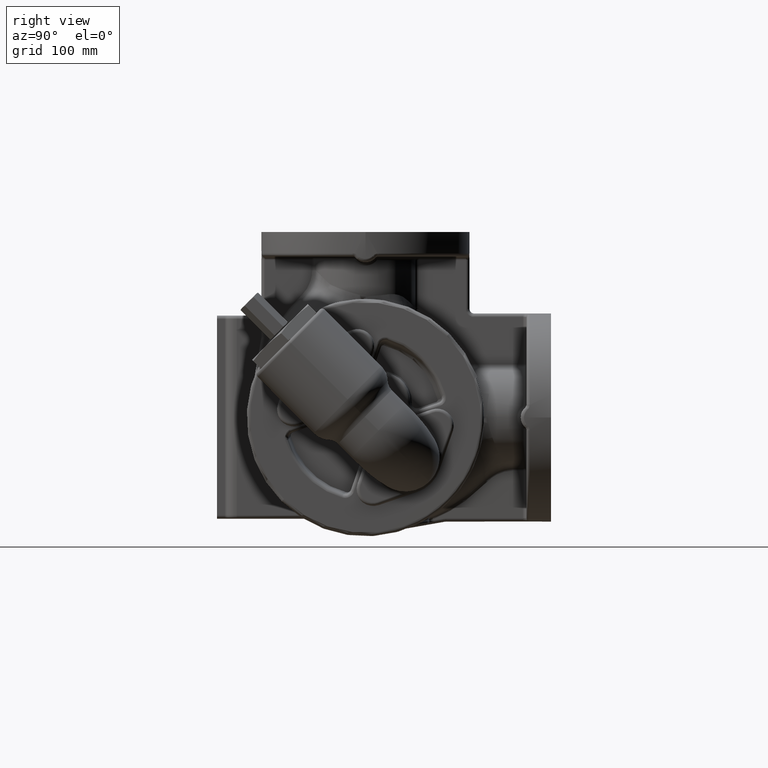
[diagram: clean part render]
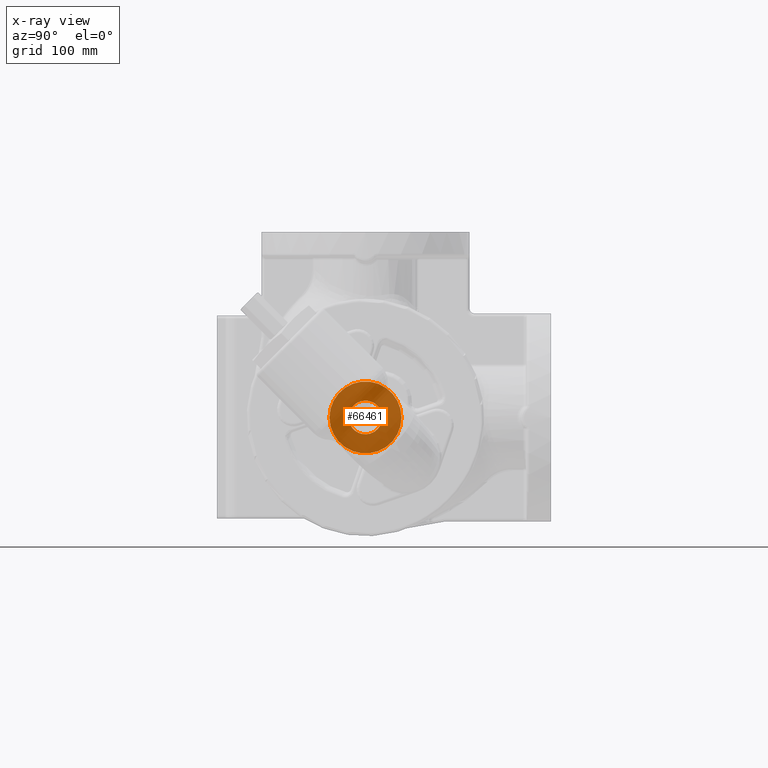
[diagram: x-ray — body ghosted, one internal face saturated and labeled with its STEP entity id]
A machine part, right view, then the same camera in x-ray: the body is ghosted and one INTERNAL B-rep face — a face not visible from any outside direction — is saturated and labeled: STEP entity #66461.
In plain terms, the highlighted planar face has unit normal (-1, 0, 0).
Its self-contained STEP definition (entity closure, byte-faithful):
#66281=CARTESIAN_POINT('',(6.5E0,0.E0,0.E0));
#66282=DIRECTION('',(-1.E0,0.E0,0.E0));
#66283=DIRECTION('',(0.E0,-1.E0,0.E0));
#66284=AXIS2_PLACEMENT_3D('',#66281,#66282,#66283);
#66286=CARTESIAN_POINT('',(6.5E0,0.E0,0.E0));
#66287=DIRECTION('',(-1.E0,0.E0,0.E0));
#66288=DIRECTION('',(0.E0,1.E0,0.E0));
#66289=AXIS2_PLACEMENT_3D('',#66286,#66287,#66288);
#66319=CARTESIAN_POINT('',(6.5E0,0.E0,0.E0));
#66320=DIRECTION('',(1.E0,0.E0,0.E0));
#66321=DIRECTION('',(0.E0,9.643650760993E-1,2.645751311065E-1));
#66322=AXIS2_PLACEMENT_3D('',#66319,#66320,#66321);
#66357=DIRECTION('',(0.E0,1.E0,0.E0));
#66358=VECTOR('',#66357,3.465476141489E0);
#66359=CARTESIAN_POINT('',(6.5E0,1.1E1,-3.968626966597E0));
#66360=LINE('',#66359,#66358);
#66361=DIRECTION('',(0.E0,1.E0,0.E0));
#66362=VECTOR('',#66361,3.465476141489E0);
#66363=CARTESIAN_POINT('',(6.5E0,1.1E1,3.968626966597E0));
#66364=LINE('',#66363,#66362);
#66365=CARTESIAN_POINT('',(6.5E0,0.E0,0.E0));
#66366=DIRECTION('',(1.E0,0.E0,0.E0));
#66367=DIRECTION('',(0.E0,0.E0,1.E0));
#66368=AXIS2_PLACEMENT_3D('',#66365,#66366,#66367);
#66407=DIRECTION('',(0.E0,0.E0,-1.E0));
#66408=VECTOR('',#66407,7.937253933194E0);
#66409=CARTESIAN_POINT('',(6.5E0,1.1E1,3.968626966597E0));
#66410=LINE('',#66409,#66408);
#66424=CARTESIAN_POINT('',(6.5E0,-3.2E1,0.E0));
#66425=CARTESIAN_POINT('',(6.5E0,3.2E1,0.E0));
#66426=VERTEX_POINT('',#66424);
#66427=VERTEX_POINT('',#66425);
#66428=CARTESIAN_POINT('',(6.5E0,1.446547614149E1,3.968626966597E0));
#66429=CARTESIAN_POINT('',(6.5E0,0.E0,1.5E1));
#66430=VERTEX_POINT('',#66428);
#66431=VERTEX_POINT('',#66429);
#66432=CARTESIAN_POINT('',(6.5E0,1.446547614149E1,-3.968626966597E0));
#66433=VERTEX_POINT('',#66432);
#66434=CARTESIAN_POINT('',(6.5E0,1.1E1,3.968626966597E0));
#66435=CARTESIAN_POINT('',(6.5E0,1.1E1,-3.968626966597E0));
#66436=VERTEX_POINT('',#66434);
#66437=VERTEX_POINT('',#66435);
#66438=CARTESIAN_POINT('',(6.5E0,-8.027221374070E-14,2.534084053707E-14));
#66439=DIRECTION('',(-1.E0,0.E0,0.E0));
#66440=DIRECTION('',(0.E0,0.E0,1.E0));
#66441=AXIS2_PLACEMENT_3D('',#66438,#66439,#66440);
#66442=PLANE('',#66441);
#66444=ORIENTED_EDGE('',*,*,#66443,.T.);
#66446=ORIENTED_EDGE('',*,*,#66445,.T.);
#66447=EDGE_LOOP('',(#66444,#66446));
#66448=FACE_OUTER_BOUND('',#66447,.F.);
#66450=ORIENTED_EDGE('',*,*,#66449,.T.);
#66452=ORIENTED_EDGE('',*,*,#66451,.T.);
#66454=ORIENTED_EDGE('',*,*,#66453,.F.);
#66456=ORIENTED_EDGE('',*,*,#66455,.F.);
#66458=ORIENTED_EDGE('',*,*,#66457,.T.);
#66459=EDGE_LOOP('',(#66450,#66452,#66454,#66456,#66458));
#66460=FACE_BOUND('',#66459,.F.);
#66461=ADVANCED_FACE('',(#66448,#66460),#66442,.F.);
#66285=CIRCLE('',#66284,3.2E1);
#66290=CIRCLE('',#66289,3.2E1);
#66323=CIRCLE('',#66322,1.5E1);
#66369=CIRCLE('',#66368,1.5E1);
#66443=EDGE_CURVE('',#66426,#66427,#66285,.T.);
#66445=EDGE_CURVE('',#66427,#66426,#66290,.T.);
#66449=EDGE_CURVE('',#66430,#66431,#66323,.T.);
#66451=EDGE_CURVE('',#66431,#66433,#66369,.T.);
#66453=EDGE_CURVE('',#66437,#66433,#66360,.T.);
#66455=EDGE_CURVE('',#66436,#66437,#66410,.T.);
#66457=EDGE_CURVE('',#66436,#66430,#66364,.T.);